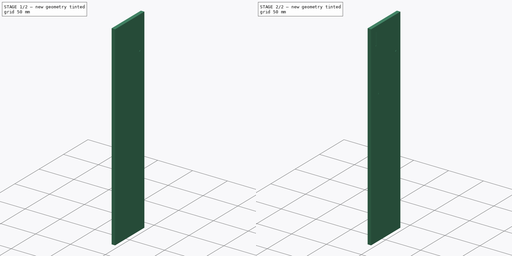
[diagram: build sequence overview — one tinted view per stage of 2, left to right]
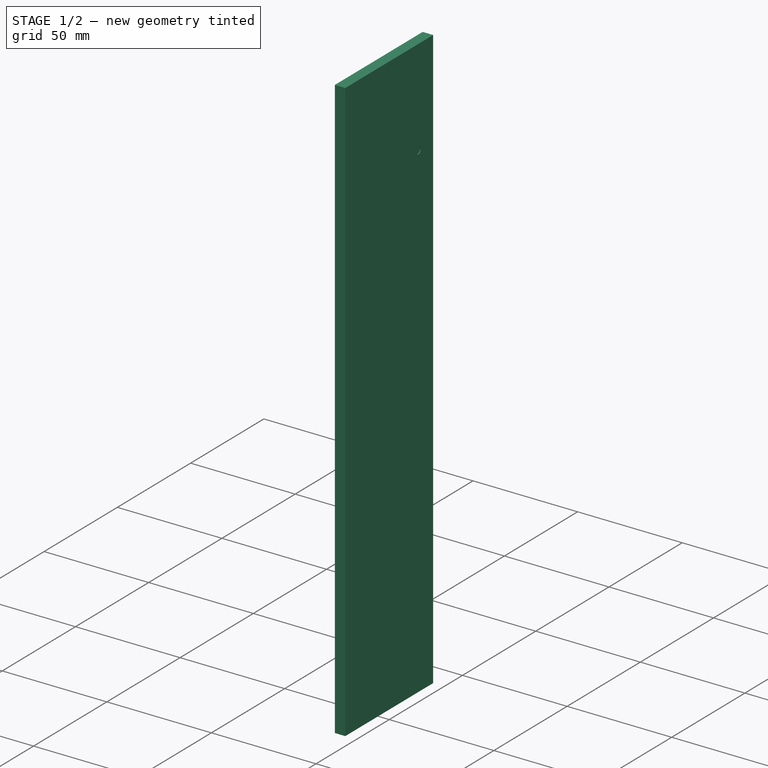
[diagram: stage 1 of 2 — iso view after this stage's code; geometry added in this stage tinted green]
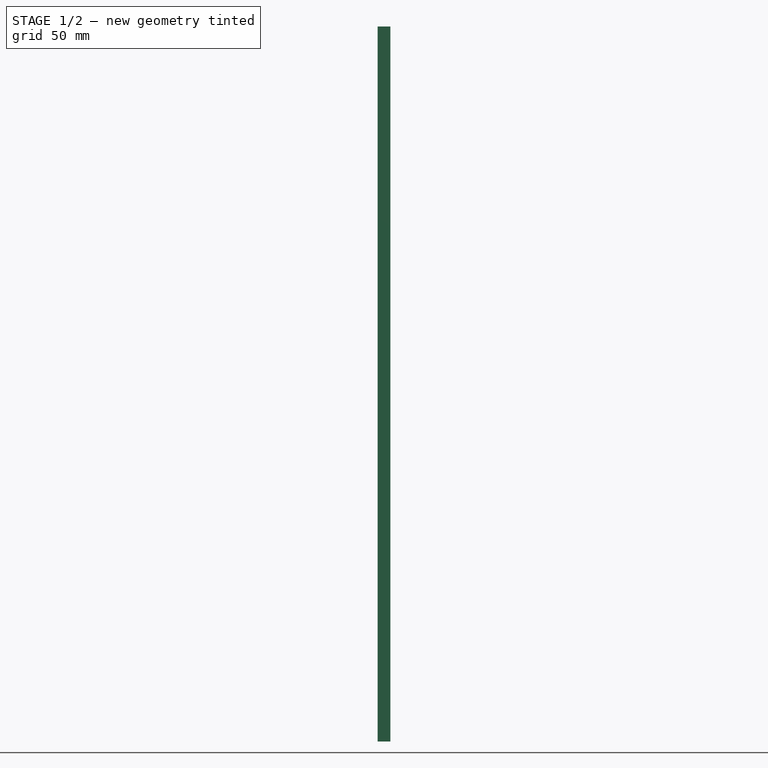
[diagram: stage 1 of 2 — front view after this stage's code; geometry added in this stage tinted green]
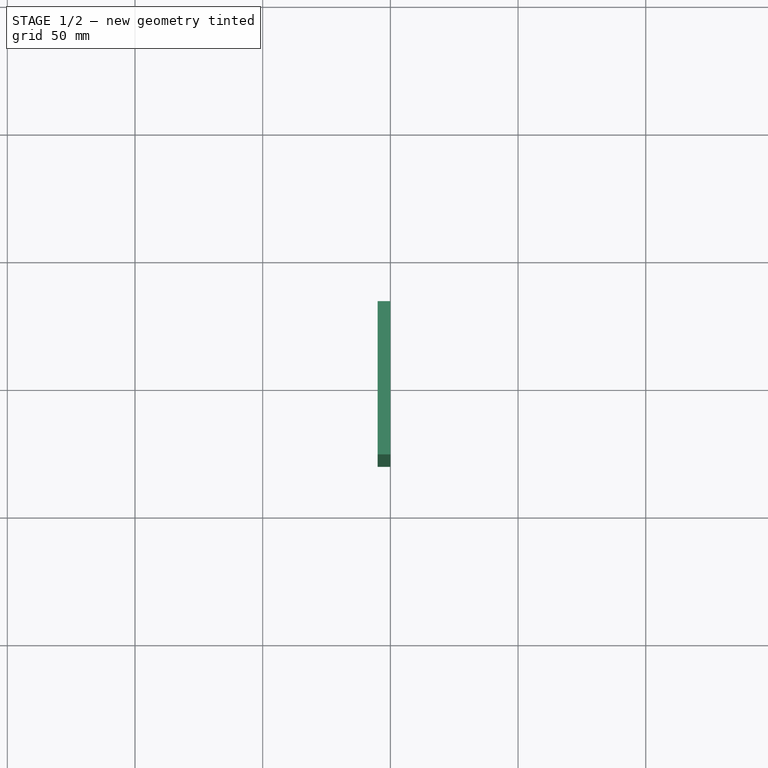
[diagram: stage 1 of 2 — top view after this stage's code; geometry added in this stage tinted green]
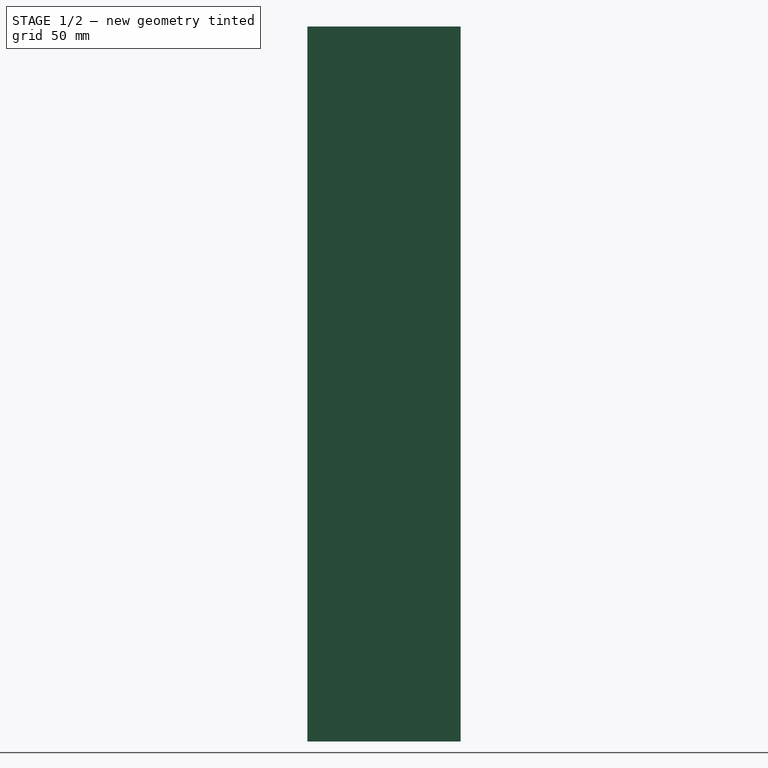
[diagram: stage 1 of 2 — right view after this stage's code; geometry added in this stage tinted green]
FCSTD DOCUMENT  (FreeCAD 0.20R29177 (Git))
Label: mount_plate_v2
License: All rights reserved
LicenseURL: http://en.wikipedia.org/wiki/All_rights_reserved
objects: Sketcher::SketchObject×4, PartDesign::Point×4, PartDesign::Pocket×3, PartDesign::Line×3, Spreadsheet::Sheet×1, PartDesign::Pad×1, PartDesign::Body×1
note: 20 computed .brp shape members not serialized (recipe doc carries the construction recipe); baked Part::Feature solids carry a one-line shape summary decoded from their .brp

FEATURE [Spreadsheet::Sheet] Spreadsheet
  cells = A2=Design Parameters; A3=RefLength; B3(RefLength)==1mm; A4=SmallArmArcRadius; B4(SmallArmArcRadius)==30 * RefLength; A5=LargeArmArcRadius; B5(LargeArmArcRadius)==35 * RefLength; A6=WidthMargin; B6(WidthMargin)==0.5 * SmallArmArcRadius; A7=HeightMarginUpper; B7(HeightMarginUpper)==20 * RefLength; A8=HeightMarginLower; B8(HeightMarginLower)==200 * RefLength; A9=Width; B9(Width)==SmallArmArcRadius + 2 * WidthMargin; A10=Height; B10(Height)==2 * SmallArmArcRadius + HeightMarginLower + HeightMarginUpper; A11=Thickness; B11(Thickness)==5 * RefLength; A12=MechanismCenter; B12(MechanismCenter)==SmallArmArcRadius + HeightMarginLower; A14=ArmBasePadLength; B14(ArmBasePadLength)==0.5 * RefLength; A15=ArmBallDiameter; B15(ArmBallDiameter)==1.25 * RefLength; A16=ArmBallMargin; B16(ArmBallMargin)==0.01 * RefLength; A17=ArmBallCutoutDiameter; B17(ArmBallCutoutDiameter)==ArmBallDiameter + 2 * ArmBallMargin; A19=Ax1BeamHeight; B19(Ax1BeamHeight)==0.5 * RefLength; A20=Ax1BallCutoutDepth; B20(Ax1BallCutoutDepth)==0.25 * ArmBallCutoutDiameter; A22=Mu1BallToBallCenter; B22(Mu1BallToBallCenter)==5.25 * RefLength; A23=Mu1Angle; B23(Mu1Angle)==20deg; A24=Mu1AdjustedLength; B24(Mu1AdjustedLength)==Mu1BallToBallCenter * cos(Mu1Angle); A26=SlaBallDepth; B26(SlaBallDepth)==0.25 * ArmBallCutoutDiameter; A27=SlaArmHeight; B27(SlaArmHeight)==0.75 * RefLength; A28=SlaArmTipOffsetY; B28(SlaArmTipOffsetY)==5 * RefLength; A29=SlaArmBaseOffsetY; B29(SlaArmBaseOffsetY)==0.5 * SmallArmArcRadius + SlaArmTipOffsetY; A30=SlaArmBaseOffsetZ; B30(SlaArmBaseOffsetZ)==MechanismCenter + 0.5 * Mu1AdjustedLength + 0.5 * SlaArmHeight - SlaBallDepth + 1 * ArmBallCutoutDiameter + 0.5 * Ax1BeamHeight - Ax1BallCutoutDepth; A31=SlaBaseDiameter; B31(SlaBaseDiameter)==3 * RefLength; A32=SlaBasePocketMargin; B32(SlaBasePocketMargin)==0.02 * RefLength; A33=SlaBasePocketDiameter; B33(SlaBasePocketDiameter)==SlaBaseDiameter + 2 * SlaBasePocketMargin; A34=SlaBasePocketDepth; B34(SlaBasePocketDepth)==ArmBasePadLength; A36=ScuArmTipOffsetZ; B36(ScuArmTipOffsetZ)==5 * RefLength; A37=ScuArmBaseOffsetY; B37(ScuArmBaseOffsetY)==0.5 * SmallArmArcRadius + ScuArmTipOffsetZ; A38=ScuArmBaseOffsetZ; B38(ScuArmBaseOffsetZ)==MechanismCenter + SmallArmArcRadius + 0.5 * Mu1AdjustedLength + 1 * ArmBallCutoutDiameter + 0.5 * Ax1BeamHeight - Ax1BallCutoutDepth; A39=ScuBaseHeight; B39(ScuBaseHeight)==1.5 * RefLength; A40=ScuBaseWidth; B40(ScuBaseWidth)==3 * RefLength; A41=ScuBaseWidthMargin; B41(ScuBaseWidthMargin)==0.02 * RefLength; A42=ScuBasePocketWidth; B42(ScuBasePocketWidth)==ScuBaseHeight + 2 * ScuBaseWidthMargin; A43=ScuBasePocketLength; B43(ScuBasePocketLength)==6 * ScuBaseWidth; A44=ScuBasePocketDepth; B44(ScuBasePocketDepth)==ArmBasePadLength; A46=PwpArmBaseOffsetY; B46(PwpArmBaseOffsetY)==0.5 * SmallArmArcRadius; A47=PwpArmBaseOffsetZ; B47(PwpArmBaseOffsetZ)==MechanismCenter - LargeArmArcRadius - 0.5 * Mu1AdjustedLength - 0.5 * ArmBallCutoutDiameter - 0.5 * Ax1BeamHeight + Ax1BallCutoutDepth; A48=PwpBaseHeight; B48(PwpBaseHeight)==1.5 * RefLength; A49=PwpBaseWidth; B49(PwpBaseWidth)==3 * RefLength; A50=PwpBaseMargin; B50(PwpBaseMargin)==0.02 * RefLength; A51=PwpBaseCornerRadius; B51(PwpBaseCornerRadius)==0.25 * RefLength; A52=PwpBasePocketWidth; B52(PwpBasePocketWidth)==PwpBaseHeight + 2 * PwpBaseMargin; A53=PwpBasePocketLength; B53(PwpBasePocketLength)==PwpBaseWidth; A54=PwpBasePocketCornerRadius; B54(PwpBasePocketCornerRadius)==PwpBaseCornerRadius + PwpBaseMargin; A55=PwpBasePocketDepth; B55(PwpBasePocketDepth)==ArmBasePadLength; A57=JointAttachmentPoints; A58=WorldBodyDatumPointX; B58(WorldBodyDatumPointX)==0mm; A59=WorldBodyDatumPointY; B59(WorldBodyDatumPointY)==0mm; A60=WorldBodyDatumPointZ; B60(WorldBodyDatumPointZ)==0mm; A62=SlaJointDatumPointX; B62(SlaJointDatumPointX)==-SlaBasePocketDepth; A63=SlaJointDatumPointY; B63(SlaJointDatumPointY)==SlaArmBaseOffsetY; A64=SlaJointDatumPointZ; B64(SlaJointDatumPointZ)==SlaArmBaseOffsetZ; A66=ScuJointDatumPointX; B66(ScuJointDatumPointX)==-ScuBasePocketDepth; A67=ScuJointDatumPointY; B67(ScuJointDatumPointY)==-ScuArmBaseOffsetY; A68=ScuJointDatumPointZ; B68(ScuJointDatumPointZ)==ScuArmBaseOffsetZ; A70=PwpJointDatumPointX; B70(PwpJointDatumPointX)==-PwpBasePocketDepth; A71=PwpJointDatumPointY; B71(PwpJointDatumPointY)==-PwpArmBaseOffsetY; A72=PwpJointDatumPointZ; B72(PwpJointDatumPointZ)==PwpArmBaseOffsetZ
FEATURE [Sketcher::SketchObject] Sketch  label="PlateSketch"
  FullyConstrained = true
  MapMode = 5
  Placement = pos=(0,0,0) rot=(0.57735,0.57735,0.57735;2.0944rad)
  Support = -> [YZ_Plane]
  expr: Constraints[12] = Spreadsheet.Width
  expr: Constraints[13] = Spreadsheet.Height
  sketch-geometry (5):
    g0: LineSegment StartX=0 StartY=0 StartZ=0 EndX=-30 EndY=0 EndZ=0
    g1: LineSegment StartX=-30 StartY=0 StartZ=0 EndX=-30 EndY=280 EndZ=0
    g2: LineSegment StartX=-30 StartY=280 StartZ=0 EndX=30 EndY=280 EndZ=0
    g3: LineSegment StartX=30 StartY=280 StartZ=0 EndX=30 EndY=0 EndZ=0
    g4: LineSegment StartX=30 StartY=0 StartZ=0 EndX=0 EndY=0 EndZ=0
  constraints (14):
    c: Horizontal(g0)
    c: Coincident(g0,g1)
    c: Vertical(g1)
    c: Coincident(g1,g2)
    c: Horizontal(g2)
    c: Coincident(g2,g3)
    c: Vertical(g3)
    c: Coincident(g3,g4)
    c: Horizontal(g4)
    c: Coincident(g0,g4)
    c: Equal(g0,g4)
    c: Coincident(g0,g-1)
    c: DistanceX(g2,g2) = 60
    c: DistanceY(g3,g3) = 280
FEATURE [PartDesign::Pad] Pad  label="PlatePad"
  Direction = (1,-2e-16,3e-16)
  Length = 5
  Length2 = 10
  Placement = pos=(0,0,0) rot=(0.57735,0.57735,0.57735;2.0944rad)
  Profile = -> Sketch
  ReferenceAxis = -> Sketch [N_Axis]
  Reversed = true
  Type = 0
  expr: Length = Spreadsheet.Thickness
FEATURE [Sketcher::SketchObject] Sketch001  label="SlaBasePocketSketch"
  FullyConstrained = true
  MapMode = 5
  Placement = pos=(0,0,0) rot=(0.57735,0.57735,0.57735;2.0944rad)
  Support = -> [YZ_Plane]
  expr: Constraints[2] = Spreadsheet.SlaArmBaseOffsetZ
  expr: Constraints[5] = Spreadsheet.SlaArmBaseOffsetY
  expr: Constraints[7] = Spreadsheet.SlaBasePocketDiameter
  sketch-geometry (3):
    g0: LineSegment StartX=0 StartY=0 StartZ=0 EndX=0 EndY=233.727 EndZ=0
    g1: LineSegment StartX=0 StartY=233.727 StartZ=0 EndX=20 EndY=233.727 EndZ=0
    g2: Circle CenterX=20 CenterY=233.727 CenterZ=0 NormalX=0 NormalY=0 NormalZ=1 AngleXU=0 Radius=1.52
  constraints (8):
    c: Vertical(g0)
    c: Coincident(g0,g-1)
    c: DistanceY(g0,g0) = 233.727
    c: Horizontal(g1)
    c: Coincident(g1,g0)
    c: DistanceX(g1,g1) = 20
    c: Coincident(g2,g1)
    c: Diameter(g2) = 3.04
FEATURE [PartDesign::Pocket] Pocket  label="SlaBasePocket"
  BaseFeature = -> Pad
  Direction = (-1,2e-16,-3e-16)
  Length = 0.5
  Length2 = 5
  Placement = pos=(0,0,0) rot=(0.57735,0.57735,0.57735;2.0944rad)
  Profile = -> Sketch001
  ReferenceAxis = -> Sketch001 [N_Axis]
  Type = 0
  expr: Length = Spreadsheet.SlaBasePocketDepth
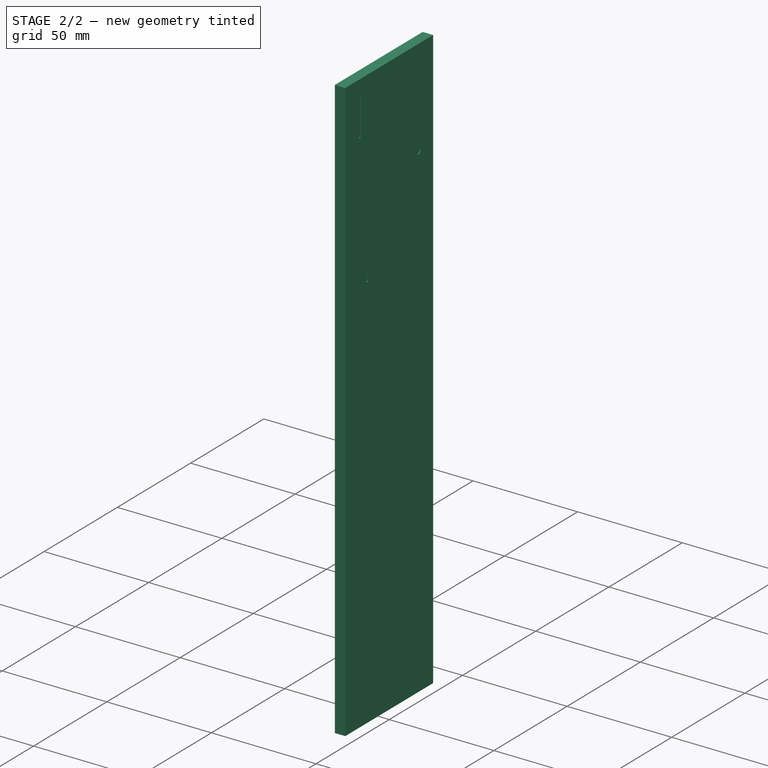
[diagram: stage 2 of 2 — iso view after this stage's code; geometry added in this stage tinted green]
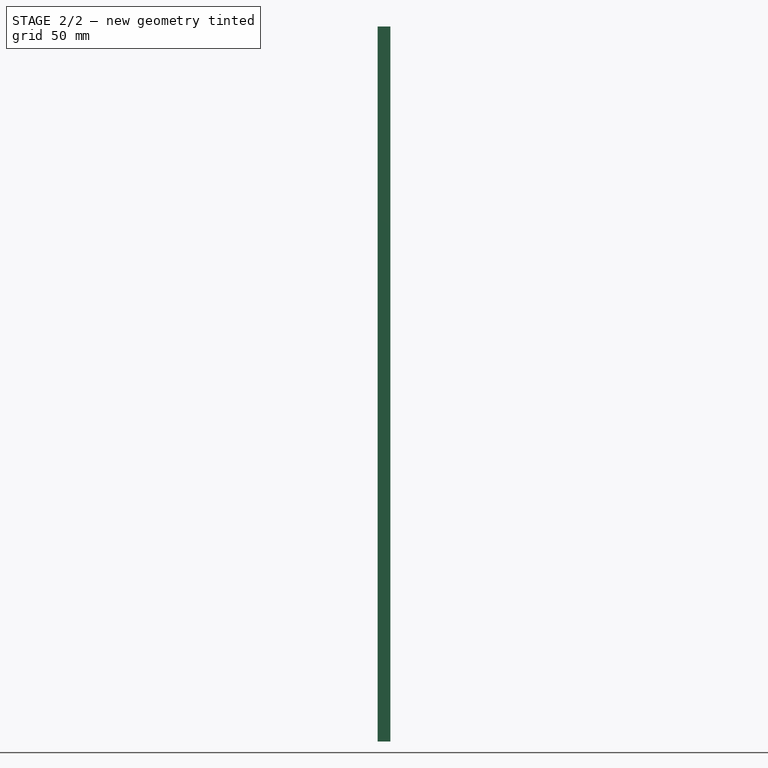
[diagram: stage 2 of 2 — front view after this stage's code; geometry added in this stage tinted green]
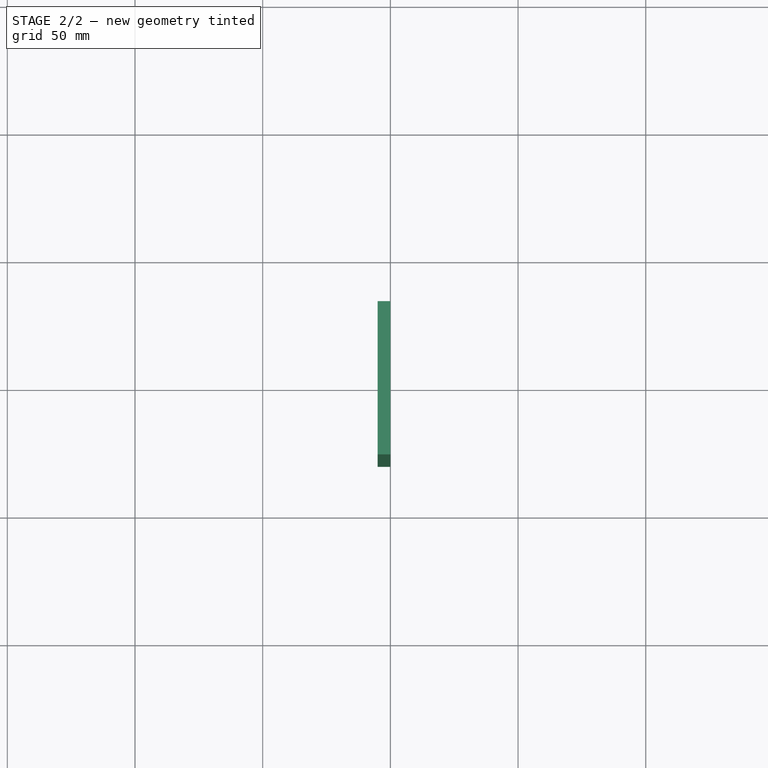
[diagram: stage 2 of 2 — top view after this stage's code; geometry added in this stage tinted green]
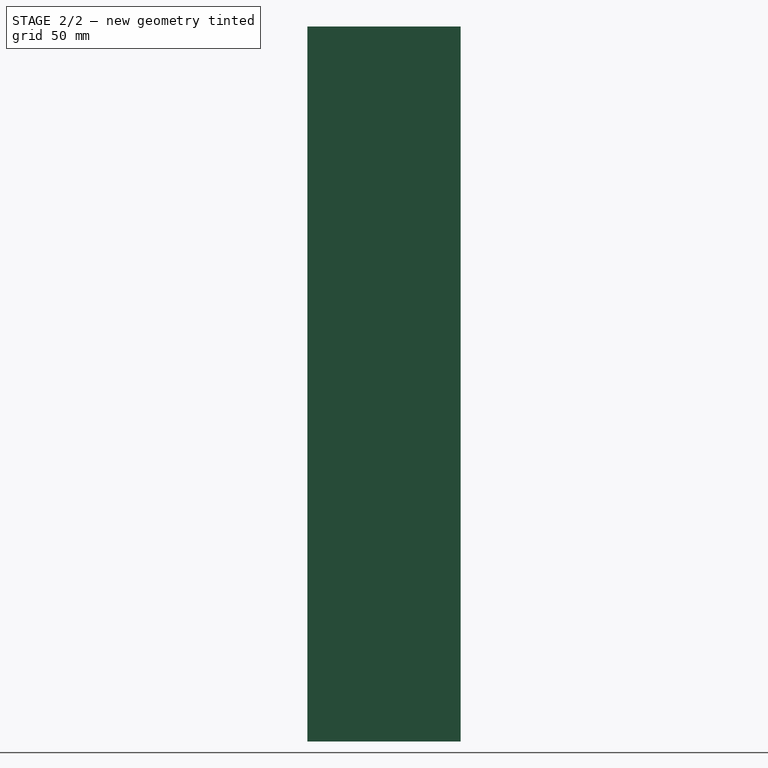
[diagram: stage 2 of 2 — right view after this stage's code; geometry added in this stage tinted green]
FEATURE [Sketcher::SketchObject] Sketch002  label="ScuBasePocketSketch"
  FullyConstrained = true
  MapMode = 5
  Placement = pos=(0,0,0) rot=(0.57735,0.57735,0.57735;2.0944rad)
  Support = -> [YZ_Plane]
  expr: Constraints[15] = Spreadsheet.ScuBasePocketLength
  expr: Constraints[16] = Spreadsheet.ScuBasePocketWidth
  expr: Constraints[4] = Spreadsheet.ScuArmBaseOffsetZ
  expr: Constraints[5] = Spreadsheet.ScuArmBaseOffsetY
  sketch-geometry (6):
    g0: LineSegment StartX=0 StartY=0 StartZ=0 EndX=0 EndY=263.669 EndZ=0
    g1: LineSegment StartX=-20 StartY=263.669 StartZ=0 EndX=0 EndY=263.669 EndZ=0
    g2: LineSegment StartX=-20.77 StartY=272.669 StartZ=0 EndX=-19.23 EndY=272.669 EndZ=0
    g3: LineSegment StartX=-19.23 StartY=272.669 StartZ=0 EndX=-19.23 EndY=254.669 EndZ=0
    g4: LineSegment StartX=-19.23 StartY=254.669 StartZ=0 EndX=-20.77 EndY=254.669 EndZ=0
    g5: LineSegment StartX=-20.77 StartY=254.669 StartZ=0 EndX=-20.77 EndY=272.669 EndZ=0
  constraints (17):
    c: Vertical(g0)
    c: Coincident(g-1,g0)
    c: Horizontal(g1)
    c: Coincident(g1,g0)
    c: DistanceY(g0,g0) = 263.669
    c: DistanceX(g1,g1) = 20
    c: Coincident(g2,g3)
    c: Coincident(g3,g4)
    c: Coincident(g4,g5)
    c: Coincident(g5,g2)
    c: Horizontal(g2)
    c: Horizontal(g4)
    c: Vertical(g3)
    c: Vertical(g5)
    c: Symmetric(g2,g3,g1)
    c: DistanceY(g5,g5) = 18
    c: DistanceX(g2,g2) = 1.54
FEATURE [PartDesign::Pocket] Pocket001  label="ScuBasePocket"
  BaseFeature = -> Pocket
  Direction = (-1,2e-16,-3e-16)
  Length = 0.5
  Length2 = 5
  Placement = pos=(0,0,0) rot=(0.57735,0.57735,0.57735;2.0944rad)
  Profile = -> Sketch002
  ReferenceAxis = -> Sketch002 [N_Axis]
  Type = 0
  expr: Length = Spreadsheet.ScuBasePocketDepth
FEATURE [Sketcher::SketchObject] Sketch003  label="PwpBasePocketSketch"
  FullyConstrained = true
  MapMode = 5
  Placement = pos=(0,0,0) rot=(0.57735,0.57735,0.57735;2.0944rad)
  Support = -> [YZ_Plane]
  expr: Constraints[26] = Spreadsheet.PwpBasePocketCornerRadius
  expr: Constraints[27] = Spreadsheet.PwpBasePocketLength
  expr: Constraints[28] = Spreadsheet.PwpBasePocketWidth
  expr: Constraints[4] = Spreadsheet.PwpArmBaseOffsetZ
  expr: Constraints[5] = Spreadsheet.PwpArmBaseOffsetY
  sketch-geometry (12):
    g0: LineSegment StartX=0 StartY=0 StartZ=0 EndX=0 EndY=191.966 EndZ=0
    g1: LineSegment StartX=0 StartY=191.966 StartZ=0 EndX=-15 EndY=191.966 EndZ=0
    g2: ArcOfCircle CenterX=-15.5 CenterY=193.196 CenterZ=0 NormalX=0 NormalY=0 NormalZ=1 AngleXU=0 Radius=0.27 StartAngle=1.5708 EndAngle=3.14159
    g3: LineSegment StartX=-15.5 StartY=193.466 StartZ=0 EndX=-14.5 EndY=193.466 EndZ=0
    g4: ArcOfCircle CenterX=-14.5 CenterY=193.196 CenterZ=0 NormalX=0 NormalY=0 NormalZ=1 AngleXU=0 Radius=0.27 StartAngle=2.28e-14 EndAngle=1.5708
    g5: LineSegment StartX=-14.23 StartY=193.196 StartZ=0 EndX=-14.23 EndY=190.736 EndZ=0
    g6: ArcOfCircle CenterX=-14.5 CenterY=190.736 CenterZ=0 NormalX=0 NormalY=0 NormalZ=1 AngleXU=0 Radius=0.27 StartAngle=4.71239 EndAngle=6.28319
    g7: LineSegment StartX=-14.5 StartY=190.466 StartZ=0 EndX=-15.5 EndY=190.466 EndZ=0
    g8: ArcOfCircle CenterX=-15.5 CenterY=190.736 CenterZ=0 NormalX=0 NormalY=0 NormalZ=1 AngleXU=0 Radius=0.27 StartAngle=3.14159 EndAngle=4.71239
    g9: LineSegment StartX=-15.77 StartY=190.736 StartZ=0 EndX=-15.77 EndY=193.196 EndZ=0
    g10: GeomPoint X=-15.77 Y=193.466 Z=0
    g11: GeomPoint X=-14.23 Y=190.466 Z=0
  constraints (29):
    c: Vertical(g0)
    c: Coincident(g0,g1)
    c: Horizontal(g1)
    c: Coincident(g0,g-1)
    c: DistanceY(g0,g0) = 191.966
    c: DistanceX(g1,g1) = 15
    c: Tangent(g2,g3) = 1.5708
    c: Tangent(g3,g4) = 1.5708
    c: Tangent(g4,g5) = 1.5708
    c: Tangent(g5,g6) = 1.5708
    c: Tangent(g6,g7) = 1.5708
    c: Tangent(g7,g8) = 1.5708
    c: Tangent(g8,g9) = 1.5708
    c: Tangent(g9,g2) = 1.5708
    c: Horizontal(g3)
    c: Horizontal(g7)
    c: Vertical(g5)
    c: Vertical(g9)
    c: Equal(g2,g4)
    c: Equal(g4,g6)
    c: Equal(g6,g8)
    c: PointOnObject(g10,g3)
    c: PointOnObject(g10,g9)
    c: PointOnObject(g11,g5)
    c: PointOnObject(g11,g7)
    c: Symmetric(g2,g6,g1)
    c: Radius(g2) = 0.27
    c: DistanceY(g7,g2) = 3
    c: DistanceX(g8,g5) = 1.54
FEATURE [PartDesign::Pocket] Pocket002  label="PwpBasePocket"
  BaseFeature = -> Pocket001
  Direction = (-1,2e-16,-3e-16)
  Length = 0.5
  Length2 = 5
  Placement = pos=(0,0,0) rot=(0.57735,0.57735,0.57735;2.0944rad)
  Profile = -> Sketch003
  ReferenceAxis = -> Sketch003 [N_Axis]
  Type = 0
  expr: Length = Spreadsheet.PwpBasePocketDepth
FEATURE [PartDesign::Point] DatumPoint  label="WorldBodyDatumPoint"
  AttacherType = Attacher::AttachEnginePoint
  MapMode = 32
  Support = -> [XY_Plane]
  expr: .AttachmentOffset.Base.x = Spreadsheet.WorldBodyDatumPointX
  expr: .AttachmentOffset.Base.y = Spreadsheet.WorldBodyDatumPointY
  expr: .AttachmentOffset.Base.z = Spreadsheet.WorldBodyDatumPointZ
FEATURE [PartDesign::Point] DatumPoint001  label="SlaJointDatumPoint"
  AttacherType = Attacher::AttachEnginePoint
  AttachmentOffset = pos=(-0.5,20,233.727) rot=(0,0,1;0rad)
  MapMode = 32
  Placement = pos=(-0.5,20,233.727) rot=(0,0,1;0rad)
  Support = -> [XY_Plane]
  expr: .AttachmentOffset.Base.x = Spreadsheet.SlaJointDatumPointX
  expr: .AttachmentOffset.Base.y = Spreadsheet.SlaJointDatumPointY
  expr: .AttachmentOffset.Base.z = Spreadsheet.SlaJointDatumPointZ
FEATURE [PartDesign::Line] DatumLine  label="SlaJointDatumLine"
  AttacherType = Attacher::AttachEngineLine
  Length = 20
  MapMode = 16
  Placement = pos=(-0.5,20,233.727) rot=(0.57735,0.57735,0.57735;2.0944rad)
  ResizeMode = 0
  Support = -> [DatumPoint001]
FEATURE [PartDesign::Point] DatumPoint002  label="ScuJointDatumPoint"
  AttacherType = Attacher::AttachEnginePoint
  AttachmentOffset = pos=(-0.5,-20,263.669) rot=(0,0,1;0rad)
  MapMode = 32
  Placement = pos=(-0.5,-20,263.669) rot=(0,0,1;0rad)
  Support = -> [XY_Plane]
  expr: .AttachmentOffset.Base.x = Spreadsheet.ScuJointDatumPointX
  expr: .AttachmentOffset.Base.y = Spreadsheet.ScuJointDatumPointY
  expr: .AttachmentOffset.Base.z = Spreadsheet.ScuJointDatumPointZ
FEATURE [PartDesign::Line] DatumLine001  label="ScuJointDatumLine"
  AttacherType = Attacher::AttachEngineLine
  Length = 20
  MapMode = 18
  Placement = pos=(-0.5,-20,263.669) rot=(0,0,1;0rad)
  ResizeMode = 0
  Support = -> [DatumPoint002]
FEATURE [PartDesign::Point] DatumPoint003  label="PwpJointDatumPoint"
  AttacherType = Attacher::AttachEnginePoint
  AttachmentOffset = pos=(-0.5,-15,191.966) rot=(0,0,1;0rad)
  MapMode = 32
  Placement = pos=(-0.5,-15,191.966) rot=(0,0,1;0rad)
  Support = -> [XY_Plane]
  expr: .AttachmentOffset.Base.x = Spreadsheet.PwpJointDatumPointX
  expr: .AttachmentOffset.Base.y = Spreadsheet.PwpJointDatumPointY
  expr: .AttachmentOffset.Base.z = Spreadsheet.PwpJointDatumPointZ
FEATURE [PartDesign::Line] DatumLine002  label="PwpJointDatumLine"
  AttacherType = Attacher::AttachEngineLine
  Length = 20
  MapMode = 18
  Placement = pos=(-0.5,-15,191.966) rot=(0,0,1;0rad)
  ResizeMode = 0
  Support = -> [DatumPoint003]
FEATURE [PartDesign::Body] Body
  Group = -> [Sketch,Pad,Sketch001,Pocket,Sketch002,Pocket001,Sketch003,Pocket002,DatumPoint,DatumPoint001,DatumLine,DatumPoint002,DatumLine001,DatumPoint003,DatumLine002]
  Origin = -> Origin
  Tip = -> Pocket002
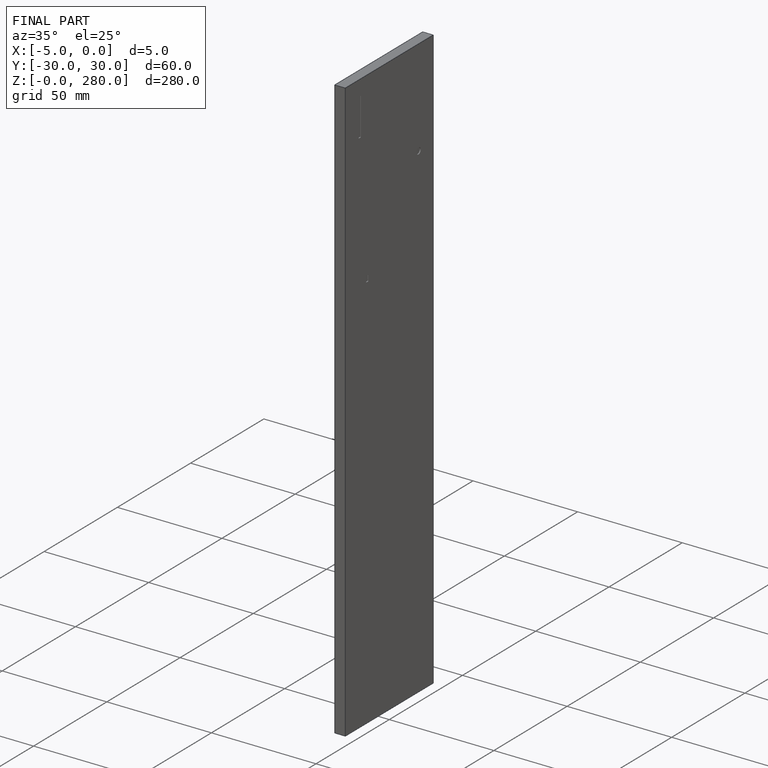
[diagram: finished part — iso view with bounding-box wireframe]
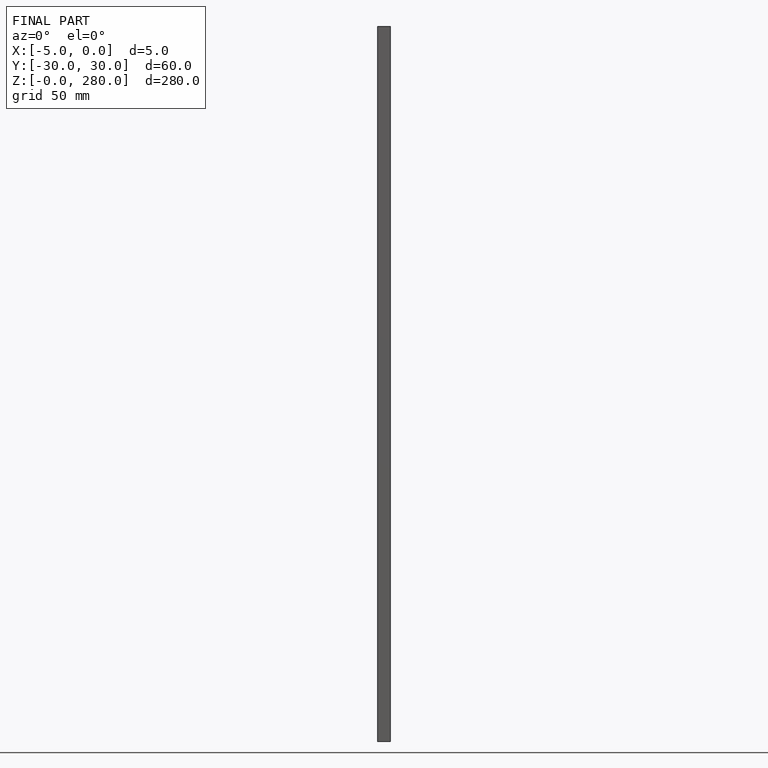
[diagram: finished part — front view with bounding-box wireframe]
